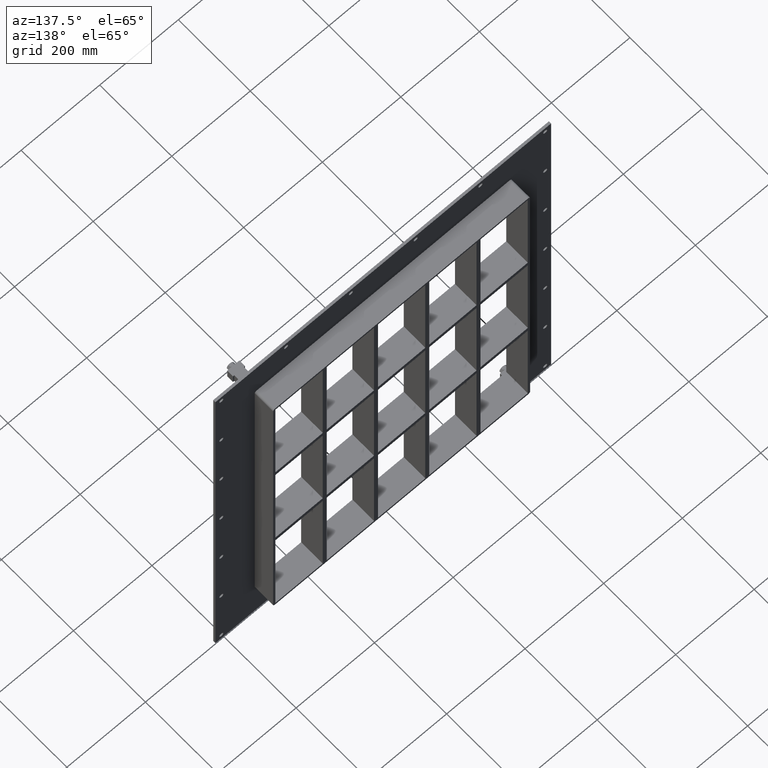
[diagram: clean part render]
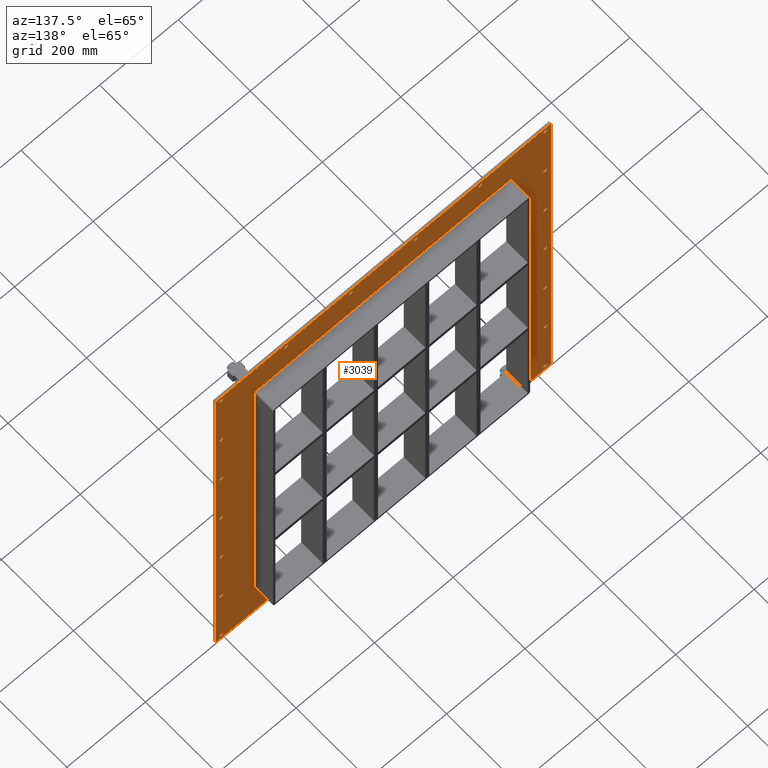
[diagram: same view with one face highlighted and labeled with its STEP entity id]
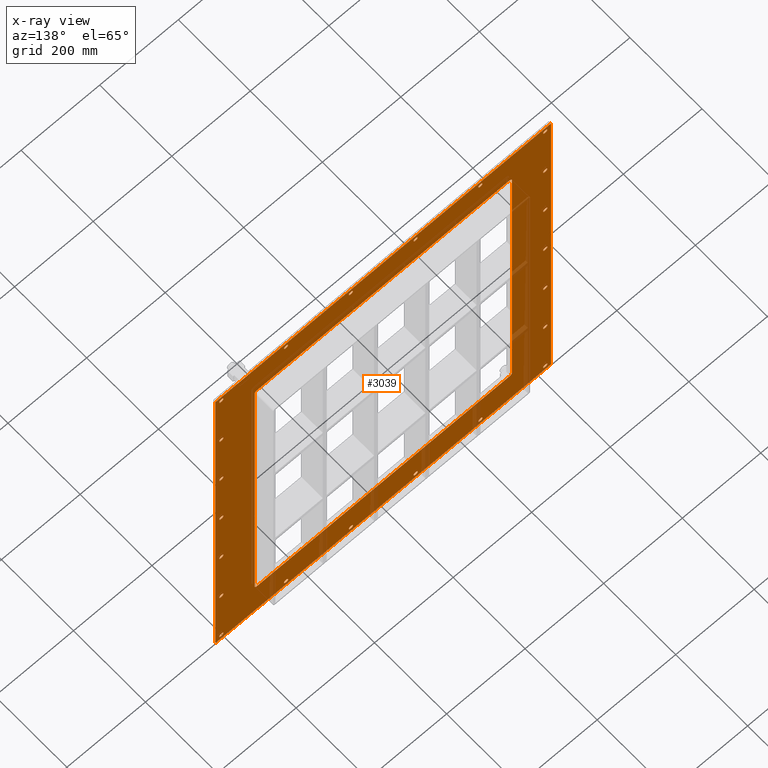
[diagram: x-ray of the same camera — body ghosted, the highlighted face saturated]
A machine part, auxiliary view. The second image highlights one B-rep face of the part: STEP entity #3039.
The next image is the same camera in x-ray: the body ghosted, the highlighted face saturated — about 7% of this face is hidden behind the body in this view.
In plain terms, the highlighted planar face has unit normal (0, 1, 0).
Its self-contained STEP definition (entity closure, byte-faithful):
#73=CARTESIAN_POINT('',(-417.50000000000011,5.999999999999943,-520.00000000000011));
#74=VERTEX_POINT('',#73);
#75=CARTESIAN_POINT('',(-412.25000000000017,5.999999999999943,-520.00000000000011));
#76=DIRECTION('',(0.0,-1.0,0.0));
#77=DIRECTION('',(1.0,0.0,0.0));
#78=AXIS2_PLACEMENT_3D('',#75,#76,#77);
#79=CIRCLE('',#78,5.25);
#80=EDGE_CURVE('',#74,#74,#79,.T.);
#101=CARTESIAN_POINT('',(407.0,5.999999999999943,-346.70000000000005));
#102=VERTEX_POINT('',#101);
#103=CARTESIAN_POINT('',(412.25,5.999999999999943,-346.70000000000005));
#104=DIRECTION('',(0.0,-1.0,0.0));
#105=DIRECTION('',(1.0,0.0,0.0));
#106=AXIS2_PLACEMENT_3D('',#103,#104,#105);
#107=CIRCLE('',#106,5.25);
#108=EDGE_CURVE('',#102,#102,#107,.T.);
#129=CARTESIAN_POINT('',(-417.50000000000011,5.999999999999943,-346.70000000000005));
#130=VERTEX_POINT('',#129);
#131=CARTESIAN_POINT('',(-412.25000000000017,5.999999999999943,-346.70000000000005));
#132=DIRECTION('',(0.0,-1.0,0.0));
#133=DIRECTION('',(1.0,0.0,0.0));
#134=AXIS2_PLACEMENT_3D('',#131,#132,#133);
#135=CIRCLE('',#134,5.25);
#136=EDGE_CURVE('',#130,#130,#135,.T.);
#157=CARTESIAN_POINT('',(407.0,5.999999999999943,-173.40000000000006));
#158=VERTEX_POINT('',#157);
#159=CARTESIAN_POINT('',(412.25,5.999999999999943,-173.40000000000006));
#160=DIRECTION('',(0.0,-1.0,0.0));
#161=DIRECTION('',(1.0,0.0,0.0));
#162=AXIS2_PLACEMENT_3D('',#159,#160,#161);
#163=CIRCLE('',#162,5.25);
#164=EDGE_CURVE('',#158,#158,#163,.T.);
#185=CARTESIAN_POINT('',(-417.50000000000011,5.999999999999943,-173.40000000000006));
#186=VERTEX_POINT('',#185);
#187=CARTESIAN_POINT('',(-412.25000000000017,5.999999999999943,-173.40000000000006));
#188=DIRECTION('',(0.0,-1.0,0.0));
#189=DIRECTION('',(1.0,0.0,0.0));
#190=AXIS2_PLACEMENT_3D('',#187,#188,#189);
#191=CIRCLE('',#190,5.25);
#192=EDGE_CURVE('',#186,#186,#191,.T.);
#213=CARTESIAN_POINT('',(407.0,5.999999999999943,-0.100000000000087));
#214=VERTEX_POINT('',#213);
#215=CARTESIAN_POINT('',(412.25,5.999999999999943,-0.100000000000087));
#216=DIRECTION('',(0.0,-1.0,0.0));
#217=DIRECTION('',(1.0,0.0,0.0));
#218=AXIS2_PLACEMENT_3D('',#215,#216,#217);
#219=CIRCLE('',#218,5.25);
#220=EDGE_CURVE('',#214,#214,#219,.T.);
#241=CARTESIAN_POINT('',(-417.50000000000011,5.999999999999943,-0.100000000000087));
#242=VERTEX_POINT('',#241);
#243=CARTESIAN_POINT('',(-412.25000000000017,5.999999999999943,-0.100000000000087));
#244=DIRECTION('',(0.0,-1.0,0.0));
#245=DIRECTION('',(1.0,0.0,0.0));
#246=AXIS2_PLACEMENT_3D('',#243,#244,#245);
#247=CIRCLE('',#246,5.25);
#248=EDGE_CURVE('',#242,#242,#247,.T.);
#269=CARTESIAN_POINT('',(407.0,5.999999999999943,173.20000000000005));
#270=VERTEX_POINT('',#269);
#271=CARTESIAN_POINT('',(412.25,5.999999999999943,173.20000000000005));
#272=DIRECTION('',(0.0,-1.0,0.0));
#273=DIRECTION('',(1.0,0.0,0.0));
#274=AXIS2_PLACEMENT_3D('',#271,#272,#273);
#275=CIRCLE('',#274,5.25);
#276=EDGE_CURVE('',#270,#270,#275,.T.);
#297=CARTESIAN_POINT('',(-417.50000000000011,5.999999999999943,173.20000000000005));
#298=VERTEX_POINT('',#297);
#299=CARTESIAN_POINT('',(-412.25000000000017,5.999999999999943,173.20000000000005));
#300=DIRECTION('',(0.0,-1.0,0.0));
#301=DIRECTION('',(1.0,0.0,0.0));
#302=AXIS2_PLACEMENT_3D('',#299,#300,#301);
#303=CIRCLE('',#302,5.25);
#304=EDGE_CURVE('',#298,#298,#303,.T.);
#325=CARTESIAN_POINT('',(407.0,5.999999999999943,346.50000000000006));
#326=VERTEX_POINT('',#325);
#327=CARTESIAN_POINT('',(412.25,5.999999999999943,346.50000000000006));
#328=DIRECTION('',(0.0,-1.0,0.0));
#329=DIRECTION('',(1.0,0.0,0.0));
#330=AXIS2_PLACEMENT_3D('',#327,#328,#329);
#331=CIRCLE('',#330,5.25);
#332=EDGE_CURVE('',#326,#326,#331,.T.);
#353=CARTESIAN_POINT('',(-417.50000000000011,5.999999999999943,346.50000000000006));
#354=VERTEX_POINT('',#353);
#355=CARTESIAN_POINT('',(-412.25000000000017,5.999999999999943,346.50000000000006));
#356=DIRECTION('',(0.0,-1.0,0.0));
#357=DIRECTION('',(1.0,0.0,0.0));
#358=AXIS2_PLACEMENT_3D('',#355,#356,#357);
#359=CIRCLE('',#358,5.25);
#360=EDGE_CURVE('',#354,#354,#359,.T.);
#381=CARTESIAN_POINT('',(-252.60000000000005,5.999999999999943,519.80000000000007));
#382=VERTEX_POINT('',#381);
#383=CARTESIAN_POINT('',(-247.35000000000008,5.999999999999943,519.80000000000007));
#384=DIRECTION('',(0.0,-1.0,0.0));
#385=DIRECTION('',(1.0,0.0,0.0));
#386=AXIS2_PLACEMENT_3D('',#383,#384,#385);
#387=CIRCLE('',#386,5.25);
#388=EDGE_CURVE('',#382,#382,#387,.T.);
#409=CARTESIAN_POINT('',(-252.60000000000005,5.999999999999943,-520.00000000000011));
#410=VERTEX_POINT('',#409);
#411=CARTESIAN_POINT('',(-247.35000000000008,5.999999999999943,-520.00000000000011));
#412=DIRECTION('',(0.0,-1.0,0.0));
#413=DIRECTION('',(1.0,0.0,0.0));
#414=AXIS2_PLACEMENT_3D('',#411,#412,#413);
#415=CIRCLE('',#414,5.25);
#416=EDGE_CURVE('',#410,#410,#415,.T.);
#437=CARTESIAN_POINT('',(-87.700000000000031,5.999999999999943,519.80000000000007));
#438=VERTEX_POINT('',#437);
#439=CARTESIAN_POINT('',(-82.450000000000045,5.999999999999943,519.80000000000007));
#440=DIRECTION('',(0.0,-1.0,0.0));
#441=DIRECTION('',(1.0,0.0,0.0));
#442=AXIS2_PLACEMENT_3D('',#439,#440,#441);
#443=CIRCLE('',#442,5.25);
#444=EDGE_CURVE('',#438,#438,#443,.T.);
#465=CARTESIAN_POINT('',(-87.700000000000031,5.999999999999943,-520.00000000000011));
#466=VERTEX_POINT('',#465);
#467=CARTESIAN_POINT('',(-82.450000000000045,5.999999999999943,-520.00000000000011));
#468=DIRECTION('',(0.0,-1.0,0.0));
#469=DIRECTION('',(1.0,0.0,0.0));
#470=AXIS2_PLACEMENT_3D('',#467,#468,#469);
#471=CIRCLE('',#470,5.25);
#472=EDGE_CURVE('',#466,#466,#471,.T.);
#493=CARTESIAN_POINT('',(77.199999999999989,5.999999999999943,519.80000000000007));
#494=VERTEX_POINT('',#493);
#495=CARTESIAN_POINT('',(82.449999999999974,5.999999999999943,519.80000000000007));
#496=DIRECTION('',(0.0,-1.0,0.0));
#497=DIRECTION('',(1.0,0.0,0.0));
#498=AXIS2_PLACEMENT_3D('',#495,#496,#497);
#499=CIRCLE('',#498,5.25);
#500=EDGE_CURVE('',#494,#494,#499,.T.);
#521=CARTESIAN_POINT('',(77.199999999999989,5.999999999999943,-520.00000000000011));
#522=VERTEX_POINT('',#521);
#523=CARTESIAN_POINT('',(82.449999999999974,5.999999999999943,-520.00000000000011));
#524=DIRECTION('',(0.0,-1.0,0.0));
#525=DIRECTION('',(1.0,0.0,0.0));
#526=AXIS2_PLACEMENT_3D('',#523,#524,#525);
#527=CIRCLE('',#526,5.25);
#528=EDGE_CURVE('',#522,#522,#527,.T.);
#549=CARTESIAN_POINT('',(242.10000000000002,5.999999999999943,519.80000000000007));
#550=VERTEX_POINT('',#549);
#551=CARTESIAN_POINT('',(247.34999999999999,5.999999999999943,519.80000000000007));
#552=DIRECTION('',(0.0,-1.0,0.0));
#553=DIRECTION('',(1.0,0.0,0.0));
#554=AXIS2_PLACEMENT_3D('',#551,#552,#553);
#555=CIRCLE('',#554,5.25);
#556=EDGE_CURVE('',#550,#550,#555,.T.);
#577=CARTESIAN_POINT('',(242.10000000000002,5.999999999999943,-520.00000000000011));
#578=VERTEX_POINT('',#577);
#579=CARTESIAN_POINT('',(247.34999999999999,5.999999999999943,-520.00000000000011));
#580=DIRECTION('',(0.0,-1.0,0.0));
#581=DIRECTION('',(1.0,0.0,0.0));
#582=AXIS2_PLACEMENT_3D('',#579,#580,#581);
#583=CIRCLE('',#582,5.25);
#584=EDGE_CURVE('',#578,#578,#583,.T.);
#605=CARTESIAN_POINT('',(407.0,5.999999999999943,-520.00000000000011));
#606=VERTEX_POINT('',#605);
#607=CARTESIAN_POINT('',(412.25,5.999999999999943,-520.00000000000011));
#608=DIRECTION('',(0.0,-1.0,0.0));
#609=DIRECTION('',(1.0,0.0,0.0));
#610=AXIS2_PLACEMENT_3D('',#607,#608,#609);
#611=CIRCLE('',#610,5.25);
#612=EDGE_CURVE('',#606,#606,#611,.T.);
#633=CARTESIAN_POINT('',(-417.50000000000011,5.999999999999943,519.80000000000007));
#634=VERTEX_POINT('',#633);
#635=CARTESIAN_POINT('',(-412.25000000000017,5.999999999999943,519.80000000000007));
#636=DIRECTION('',(0.0,-1.0,0.0));
#637=DIRECTION('',(1.0,0.0,0.0));
#638=AXIS2_PLACEMENT_3D('',#635,#636,#637);
#639=CIRCLE('',#638,5.25);
#640=EDGE_CURVE('',#634,#634,#639,.T.);
#661=CARTESIAN_POINT('',(407.0,5.999999999999943,519.80000000000007));
#662=VERTEX_POINT('',#661);
#663=CARTESIAN_POINT('',(412.25,5.999999999999943,519.80000000000007));
#664=DIRECTION('',(0.0,-1.0,0.0));
#665=DIRECTION('',(1.0,0.0,0.0));
#666=AXIS2_PLACEMENT_3D('',#663,#664,#665);
#667=CIRCLE('',#666,5.25);
#668=EDGE_CURVE('',#662,#662,#667,.T.);
#2864=CARTESIAN_POINT('',(0.0,6.000000000000001,0.0));
#2865=DIRECTION('',(0.0,1.0,0.0));
#2866=DIRECTION('',(0.0,0.0,1.0));
#2867=AXIS2_PLACEMENT_3D('',#2864,#2865,#2866);
#2868=PLANE('',#2867);
#2869=CARTESIAN_POINT('',(-427.25,6.000000000000001,535.00000000000011));
#2870=VERTEX_POINT('',#2869);
#2871=CARTESIAN_POINT('',(427.25,6.000000000000001,535.00000000000011));
#2872=VERTEX_POINT('',#2871);
#2873=CARTESIAN_POINT('',(-427.25,6.000000000000001,535.00000000000011));
#2874=DIRECTION('',(1.0,0.0,0.0));
#2875=VECTOR('',#2874,854.5);
#2876=LINE('',#2873,#2875);
#2877=EDGE_CURVE('',#2870,#2872,#2876,.T.);
#2878=ORIENTED_EDGE('',*,*,#2877,.T.);
#2879=CARTESIAN_POINT('',(427.25,6.000000000000001,-535.00000000000011));
#2880=VERTEX_POINT('',#2879);
#2881=CARTESIAN_POINT('',(427.25,6.000000000000001,535.00000000000011));
#2882=DIRECTION('',(0.0,0.0,-1.0));
#2883=VECTOR('',#2882,1070.0000000000002);
#2884=LINE('',#2881,#2883);
#2885=EDGE_CURVE('',#2872,#2880,#2884,.T.);
#2886=ORIENTED_EDGE('',*,*,#2885,.T.);
#2887=CARTESIAN_POINT('',(-427.25,6.000000000000001,-535.00000000000011));
#2888=VERTEX_POINT('',#2887);
#2889=CARTESIAN_POINT('',(427.25,6.000000000000001,-535.00000000000011));
#2890=DIRECTION('',(-1.0,0.0,0.0));
#2891=VECTOR('',#2890,854.5);
#2892=LINE('',#2889,#2891);
#2893=EDGE_CURVE('',#2880,#2888,#2892,.T.);
#2894=ORIENTED_EDGE('',*,*,#2893,.T.);
#2895=CARTESIAN_POINT('',(-427.25,6.000000000000001,-535.00000000000011));
#2896=DIRECTION('',(0.0,0.0,1.0));
#2897=VECTOR('',#2896,1070.0000000000002);
#2898=LINE('',#2895,#2897);
#2899=EDGE_CURVE('',#2888,#2870,#2898,.T.);
#2900=ORIENTED_EDGE('',*,*,#2899,.T.);
#2901=EDGE_LOOP('',(#2878,#2886,#2894,#2900));
#2902=FACE_OUTER_BOUND('',#2901,.T.);
#2903=ORIENTED_EDGE('',*,*,#80,.T.);
#2904=EDGE_LOOP('',(#2903));
#2905=FACE_BOUND('',#2904,.T.);
#2906=ORIENTED_EDGE('',*,*,#108,.T.);
#2907=EDGE_LOOP('',(#2906));
#2908=FACE_BOUND('',#2907,.T.);
#2909=ORIENTED_EDGE('',*,*,#136,.T.);
#2910=EDGE_LOOP('',(#2909));
#2911=FACE_BOUND('',#2910,.T.);
#2912=ORIENTED_EDGE('',*,*,#164,.T.);
#2913=EDGE_LOOP('',(#2912));
#2914=FACE_BOUND('',#2913,.T.);
#2915=ORIENTED_EDGE('',*,*,#192,.T.);
#2916=EDGE_LOOP('',(#2915));
#2917=FACE_BOUND('',#2916,.T.);
#2918=ORIENTED_EDGE('',*,*,#220,.T.);
#2919=EDGE_LOOP('',(#2918));
#2920=FACE_BOUND('',#2919,.T.);
#2921=ORIENTED_EDGE('',*,*,#248,.T.);
#2922=EDGE_LOOP('',(#2921));
#2923=FACE_BOUND('',#2922,.T.);
#2924=ORIENTED_EDGE('',*,*,#276,.T.);
#2925=EDGE_LOOP('',(#2924));
#2926=FACE_BOUND('',#2925,.T.);
#2927=ORIENTED_EDGE('',*,*,#304,.T.);
#2928=EDGE_LOOP('',(#2927));
#2929=FACE_BOUND('',#2928,.T.);
#2930=ORIENTED_EDGE('',*,*,#332,.T.);
#2931=EDGE_LOOP('',(#2930));
#2932=FACE_BOUND('',#2931,.T.);
#2933=ORIENTED_EDGE('',*,*,#360,.T.);
#2934=EDGE_LOOP('',(#2933));
#2935=FACE_BOUND('',#2934,.T.);
#2936=ORIENTED_EDGE('',*,*,#388,.T.);
#2937=EDGE_LOOP('',(#2936));
#2938=FACE_BOUND('',#2937,.T.);
#2939=ORIENTED_EDGE('',*,*,#416,.T.);
#2940=EDGE_LOOP('',(#2939));
#2941=FACE_BOUND('',#2940,.T.);
#2942=ORIENTED_EDGE('',*,*,#444,.T.);
#2943=EDGE_LOOP('',(#2942));
#2944=FACE_BOUND('',#2943,.T.);
#2945=ORIENTED_EDGE('',*,*,#472,.T.);
#2946=EDGE_LOOP('',(#2945));
#2947=FACE_BOUND('',#2946,.T.);
#2948=ORIENTED_EDGE('',*,*,#500,.T.);
#2949=EDGE_LOOP('',(#2948));
#2950=FACE_BOUND('',#2949,.T.);
#2951=ORIENTED_EDGE('',*,*,#528,.T.);
#2952=EDGE_LOOP('',(#2951));
#2953=FACE_BOUND('',#2952,.T.);
#2954=ORIENTED_EDGE('',*,*,#556,.T.);
#2955=EDGE_LOOP('',(#2954));
#2956=FACE_BOUND('',#2955,.T.);
#2957=ORIENTED_EDGE('',*,*,#584,.T.);
#2958=EDGE_LOOP('',(#2957));
#2959=FACE_BOUND('',#2958,.T.);
#2960=ORIENTED_EDGE('',*,*,#612,.T.);
#2961=EDGE_LOOP('',(#2960));
#2962=FACE_BOUND('',#2961,.T.);
#2963=ORIENTED_EDGE('',*,*,#640,.T.);
#2964=EDGE_LOOP('',(#2963));
#2965=FACE_BOUND('',#2964,.T.);
#2966=ORIENTED_EDGE('',*,*,#668,.T.);
#2967=EDGE_LOOP('',(#2966));
#2968=FACE_BOUND('',#2967,.T.);
#2969=CARTESIAN_POINT('',(-327.25000000000011,6.000000000000001,429.00000000000006));
#2970=VERTEX_POINT('',#2969);
#2971=CARTESIAN_POINT('',(-321.25000000000011,6.000000000000001,435.00000000000006));
#2972=VERTEX_POINT('',#2971);
#2973=CARTESIAN_POINT('',(-321.25000000000011,6.000000000000001,429.00000000000006));
#2974=DIRECTION('',(0.0,1.0,0.0));
#2975=DIRECTION('',(-0.707106781186548,0.0,0.707106781186548));
#2976=AXIS2_PLACEMENT_3D('',#2973,#2974,#2975);
#2977=CIRCLE('',#2976,6.000000000000002);
#2978=EDGE_CURVE('',#2970,#2972,#2977,.T.);
#2979=ORIENTED_EDGE('',*,*,#2978,.F.);
#2980=CARTESIAN_POINT('',(-327.25000000000011,6.000000000000001,-429.00000000000006));
#2981=VERTEX_POINT('',#2980);
#2982=CARTESIAN_POINT('',(-327.25000000000011,6.000000000000001,-429.00000000000006));
#2983=DIRECTION('',(0.0,0.0,1.0));
#2984=VECTOR('',#2983,858.0);
#2985=LINE('',#2982,#2984);
#2986=EDGE_CURVE('',#2981,#2970,#2985,.T.);
#2987=ORIENTED_EDGE('',*,*,#2986,.F.);
#2988=CARTESIAN_POINT('',(-321.25,6.000000000000001,-435.00000000000006));
#2989=VERTEX_POINT('',#2988);
#2990=CARTESIAN_POINT('',(-321.25,6.000000000000001,-429.00000000000006));
#2991=DIRECTION('',(0.0,1.0,0.0));
#2992=DIRECTION('',(-0.707106781186556,0.0,-0.707106781186539));
#2993=AXIS2_PLACEMENT_3D('',#2990,#2991,#2992);
#2994=CIRCLE('',#2993,6.000000000000001);
#2995=EDGE_CURVE('',#2989,#2981,#2994,.T.);
#2996=ORIENTED_EDGE('',*,*,#2995,.F.);
#2997=CARTESIAN_POINT('',(321.25,6.000000000000001,-435.00000000000006));
#2998=VERTEX_POINT('',#2997);
#2999=CARTESIAN_POINT('',(321.25,6.000000000000001,-435.00000000000006));
#3000=DIRECTION('',(-1.0,0.0,0.0));
#3001=VECTOR('',#3000,642.5);
#3002=LINE('',#2999,#3001);
#3003=EDGE_CURVE('',#2998,#2989,#3002,.T.);
#3004=ORIENTED_EDGE('',*,*,#3003,.F.);
#3005=CARTESIAN_POINT('',(327.24999999999994,6.000000000000001,-429.00000000000006));
#3006=VERTEX_POINT('',#3005);
#3007=CARTESIAN_POINT('',(321.25,6.000000000000001,-429.00000000000006));
#3008=DIRECTION('',(0.0,1.0,0.0));
#3009=DIRECTION('',(0.707106781186548,0.0,-0.707106781186548));
#3010=AXIS2_PLACEMENT_3D('',#3007,#3008,#3009);
#3011=CIRCLE('',#3010,6.000000000000002);
#3012=EDGE_CURVE('',#3006,#2998,#3011,.T.);
#3013=ORIENTED_EDGE('',*,*,#3012,.F.);
#3014=CARTESIAN_POINT('',(327.24999999999994,6.000000000000001,429.00000000000006));
#3015=VERTEX_POINT('',#3014);
#3016=CARTESIAN_POINT('',(327.24999999999994,6.000000000000001,429.00000000000006));
#3017=DIRECTION('',(0.0,0.0,-1.0));
#3018=VECTOR('',#3017,858.0);
#3019=LINE('',#3016,#3018);
#3020=EDGE_CURVE('',#3015,#3006,#3019,.T.);
#3021=ORIENTED_EDGE('',*,*,#3020,.F.);
#3022=CARTESIAN_POINT('',(321.24999999999989,6.000000000000001,435.00000000000006));
#3023=VERTEX_POINT('',#3022);
#3024=CARTESIAN_POINT('',(321.24999999999989,6.000000000000001,429.00000000000006));
#3025=DIRECTION('',(0.0,1.0,0.0));
#3026=DIRECTION('',(0.707106781186556,0.0,0.707106781186539));
#3027=AXIS2_PLACEMENT_3D('',#3024,#3025,#3026);
#3028=CIRCLE('',#3027,6.000000000000001);
#3029=EDGE_CURVE('',#3023,#3015,#3028,.T.);
#3030=ORIENTED_EDGE('',*,*,#3029,.F.);
#3031=CARTESIAN_POINT('',(-321.25000000000017,6.000000000000001,435.00000000000006));
#3032=DIRECTION('',(1.0,0.0,0.0));
#3033=VECTOR('',#3032,642.5);
#3034=LINE('',#3031,#3033);
#3035=EDGE_CURVE('',#2972,#3023,#3034,.T.);
#3036=ORIENTED_EDGE('',*,*,#3035,.F.);
#3037=EDGE_LOOP('',(#2979,#2987,#2996,#3004,#3013,#3021,#3030,#3036));
#3038=FACE_BOUND('',#3037,.T.);
#3039=ADVANCED_FACE('',(#2902,#2905,#2908,#2911,#2914,#2917,#2920,#2923,#2926,#2929,#2932,#2935,#2938,#2941,#2944,#2947,#2950,#2953,#2956,#2959,#2962,#2965,#2968,#3038),#2868,.T.);